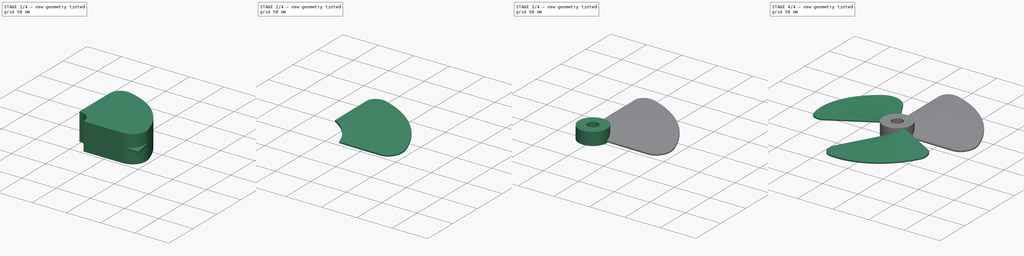
[diagram: build sequence overview — one tinted view per stage of 4, left to right]
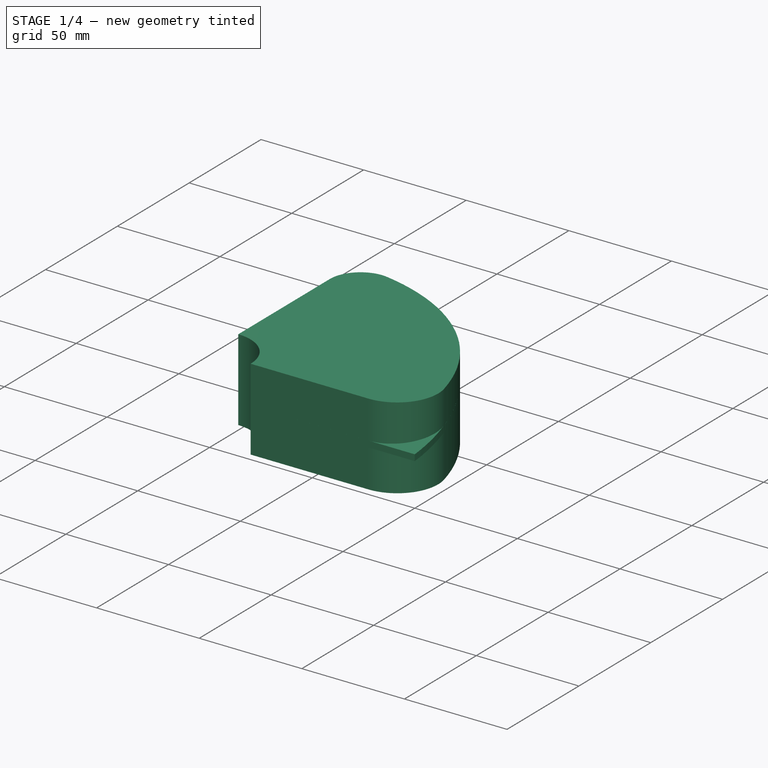
[diagram: stage 1 of 4 — iso view after this stage's code; geometry added in this stage tinted green]
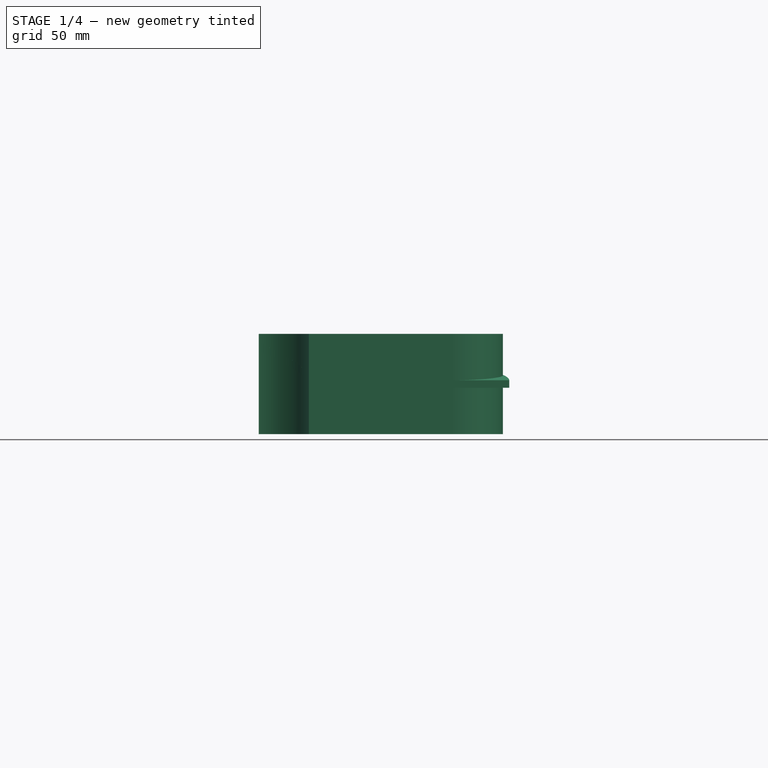
[diagram: stage 1 of 4 — front view after this stage's code; geometry added in this stage tinted green]
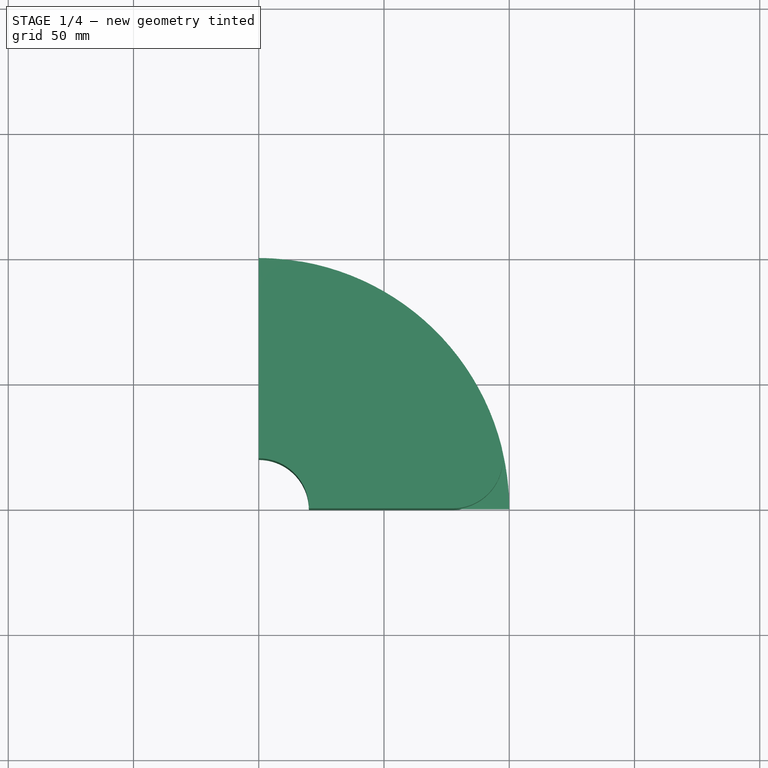
[diagram: stage 1 of 4 — top view after this stage's code; geometry added in this stage tinted green]
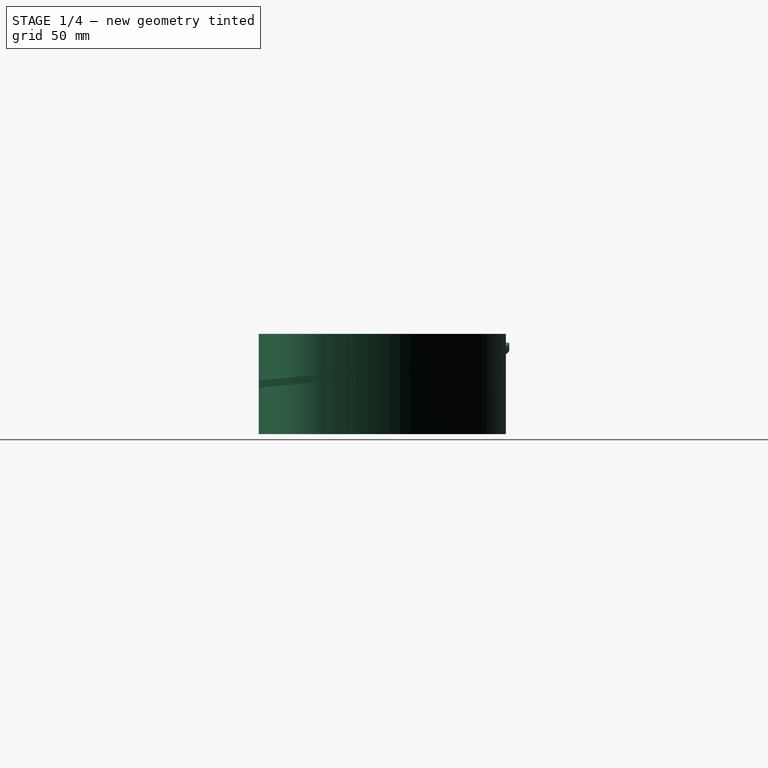
[diagram: stage 1 of 4 — right view after this stage's code; geometry added in this stage tinted green]
FCSTD DOCUMENT  (FreeCAD 0.21RUnknown)
Label: part44b-modellingFanPartDesignWB
License: All rights reserved
LicenseURL: http://en.wikipedia.org/wiki/All_rights_reserved
objects: PartDesign::Body×6, Sketcher::SketchObject×3, PartDesign::FeatureBase×3, PartDesign::Boolean×2, PartDesign::AdditiveHelix×1, PartDesign::Pad×1, PartDesign::AdditiveCylinder×1, PartDesign::Pocket×1, PartDesign::Fillet×1
note: 24 computed .brp shape members not serialized (recipe doc carries the construction recipe); baked Part::Feature solids carry a one-line shape summary decoded from their .brp

FEATURE [Sketcher::SketchObject] Sketch
  FullyConstrained = true
  MapMode = 5
  Support = -> [XY_Plane]
  sketch-geometry (6):
    g0: ArcOfCircle CenterX=0 CenterY=0 CenterZ=0 NormalX=0 NormalY=0 NormalZ=1 AngleXU=0 Radius=20 StartAngle=0 EndAngle=1.5708
    g1: ArcOfCircle CenterX=0 CenterY=0 CenterZ=0 NormalX=0 NormalY=0 NormalZ=1 AngleXU=0 Radius=100 StartAngle=0.25268 EndAngle=1.3934
    g2: LineSegment StartX=20 StartY=0 StartZ=0 EndX=77.4597 EndY=0 EndZ=0
    g3: LineSegment StartX=1.2e-15 StartY=20 StartZ=0 EndX=1.2e-15 EndY=83.666 EndZ=0
    g4: ArcOfCircle CenterX=15 CenterY=83.666 CenterZ=0 NormalX=0 NormalY=0 NormalZ=1 AngleXU=0 Radius=15 StartAngle=1.3934 EndAngle=3.14159
    g5: ArcOfCircle CenterX=77.4597 CenterY=20 CenterZ=0 NormalX=0 NormalY=0 NormalZ=1 AngleXU=0 Radius=20 StartAngle=4.71239 EndAngle=6.53587
  constraints (16):
    c: Coincident(g0,g-1)
    c: Radius(g0) = 20
    c: Coincident(g1,g0)
    c: Radius(g1) = 100
    c: Horizontal(g2)
    c: Vertical(g3)
    c: Coincident(g3,g0)
    c: Coincident(g2,g0)
    c: PointOnObject(g0,g-1)
    c: PointOnObject(g0,g-2)
    c: Tangent(g3,g4) = 1.5708
    c: Tangent(g1,g4) = -1.5708
    c: Tangent(g2,g5) = -1.5708
    c: Tangent(g1,g5) = -1.5708
    c: Radius(g5) = 20
    c: Radius(g4) = 15
FEATURE [Sketcher::SketchObject] Sketch001  label="Profile"
  FullyConstrained = true
  MapMode = 5
  Placement = pos=(0,0,0) rot=(1,0,0;1.5708rad)
  Support = -> [XZ_Plane001]
  sketch-geometry (4):
    g0: LineSegment StartX=20 StartY=1.5 StartZ=0 EndX=100 EndY=1.5 EndZ=0
    g1: LineSegment StartX=100 StartY=1.5 StartZ=0 EndX=100 EndY=-1.5 EndZ=0
    g2: LineSegment StartX=100 StartY=-1.5 StartZ=0 EndX=20 EndY=-1.5 EndZ=0
    g3: LineSegment StartX=20 StartY=-1.5 StartZ=0 EndX=20 EndY=1.5 EndZ=0
  constraints (11):
    c: Coincident(g0,g1)
    c: Coincident(g1,g2)
    c: Coincident(g2,g3)
    c: Coincident(g3,g0)
    c: Horizontal(g0)
    c: Horizontal(g2)
    c: Vertical(g1)
    c: DistanceX(g0,g0) = 80
    c: DistanceY(g3,g3) = 3
    c: DistanceX(g-1,g0) = 20
    c: Symmetric(g0,g2,g-1)
FEATURE [PartDesign::AdditiveHelix] AdditiveHelix
  Angle = 0
  Axis = (0,2e-16,1)
  Base = (0,0,0)
  Growth = 0
  HasBeenEdited = true
  Height = 15
  LeftHanded = false
  Mode = 2
  Outside = false
  Pitch = 60
  Placement = pos=(0,0,0) rot=(1,0,0;1.5708rad)
  Profile = -> Sketch001
  ReferenceAxis = -> Sketch001 [V_Axis]
  Turns = 0.25
FEATURE [PartDesign::Body] Body001  label="SweepBody"
  Group = -> [Sketch001,AdditiveHelix]
  Origin = -> Origin001
  Tip = -> AdditiveHelix
FEATURE [PartDesign::Pad] Pad
  Direction = (0,0,1)
  Length = 40
  Length2 = 10
  Midplane = true
  Profile = -> Sketch
  ReferenceAxis = -> Sketch [N_Axis]
  Type = 0
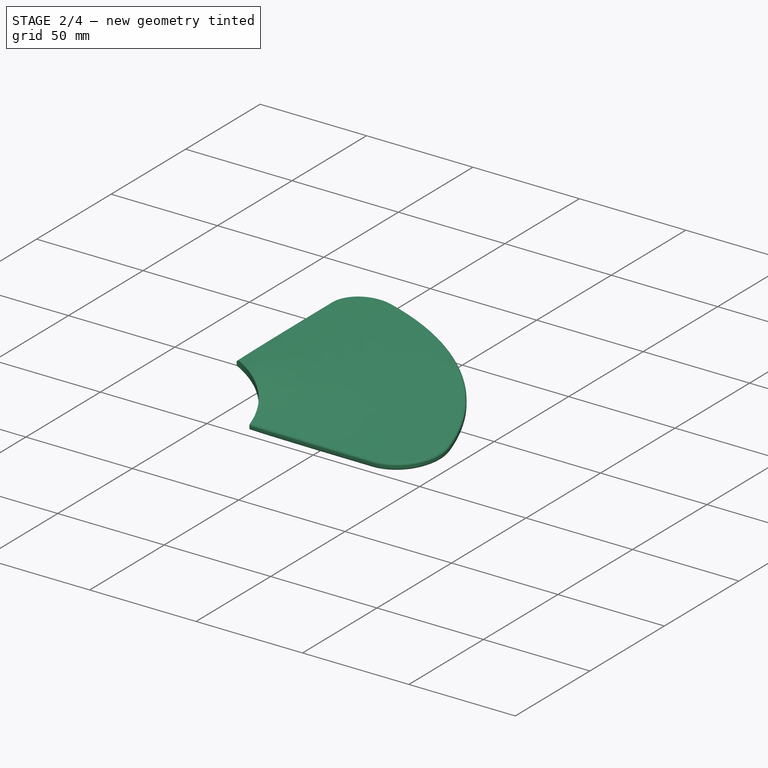
[diagram: stage 2 of 4 — iso view after this stage's code; geometry added in this stage tinted green]
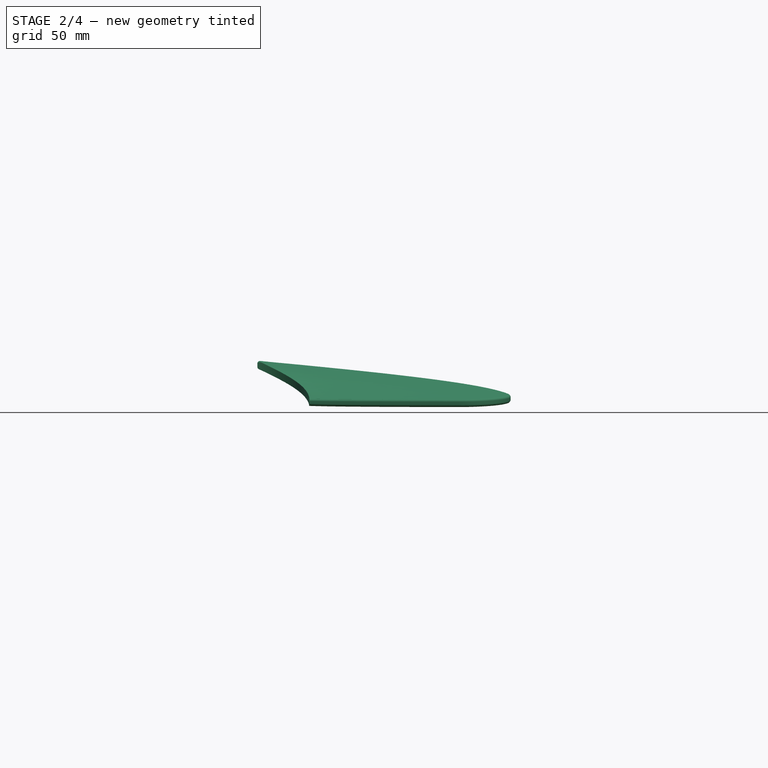
[diagram: stage 2 of 4 — front view after this stage's code; geometry added in this stage tinted green]
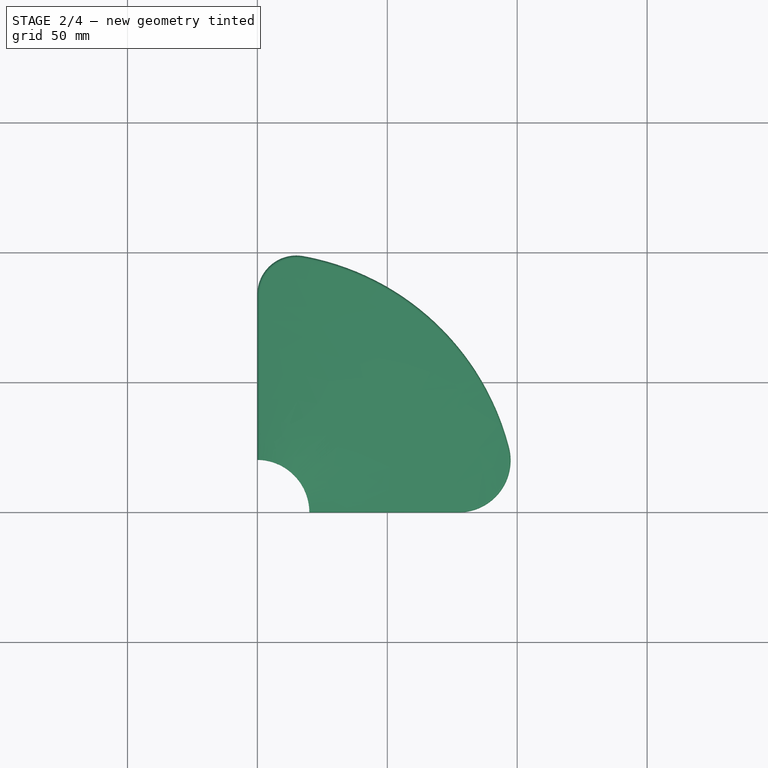
[diagram: stage 2 of 4 — top view after this stage's code; geometry added in this stage tinted green]
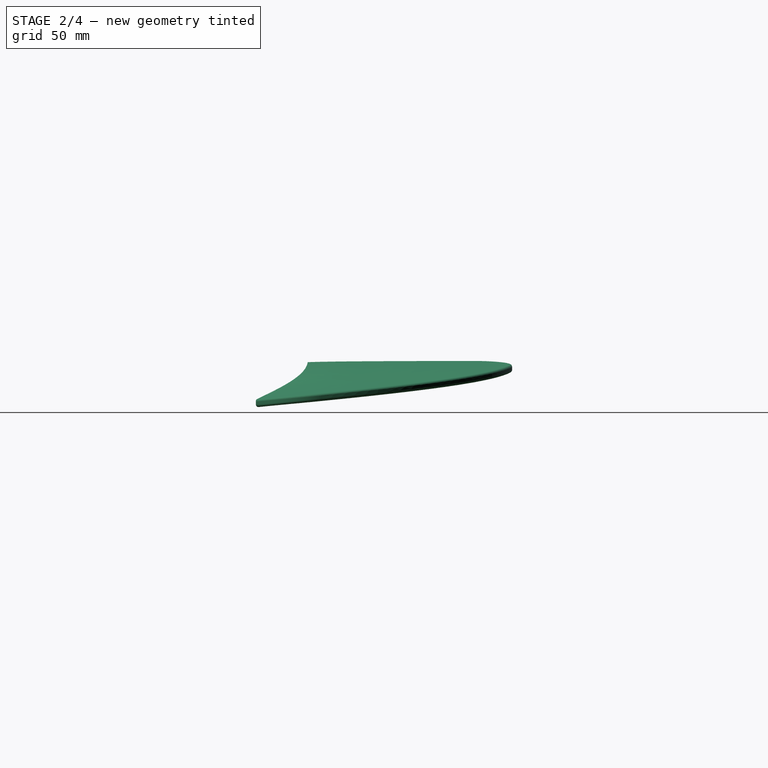
[diagram: stage 2 of 4 — right view after this stage's code; geometry added in this stage tinted green]
FEATURE [PartDesign::Boolean] Boolean
  BaseFeature = -> Pad
  Group = -> [Body001]
  Type = 2
FEATURE [PartDesign::Fillet] Fillet
  Base = -> Boolean [Edge3,Edge1]
  BaseFeature = -> Boolean
  Radius = 1
  SupportTransform = false
  UseAllEdges = false
FEATURE [PartDesign::Body] Body003  label="FanBlade3"
  Group = -> [Clone001]
  Origin = -> Origin003
  Placement = pos=(0,0,0) rot=(0,0,1;4.18879rad)
  Tip = -> Clone001
  expr: .Placement.Rotation.Angle = 240
FEATURE [PartDesign::FeatureBase] Clone002
  BaseFeature = -> Body
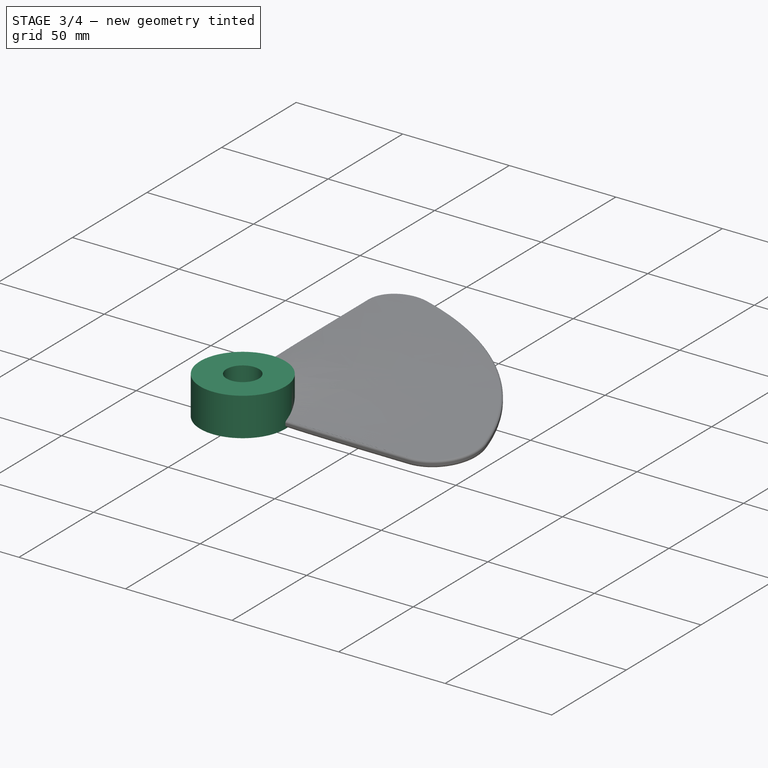
[diagram: stage 3 of 4 — iso view after this stage's code; geometry added in this stage tinted green]
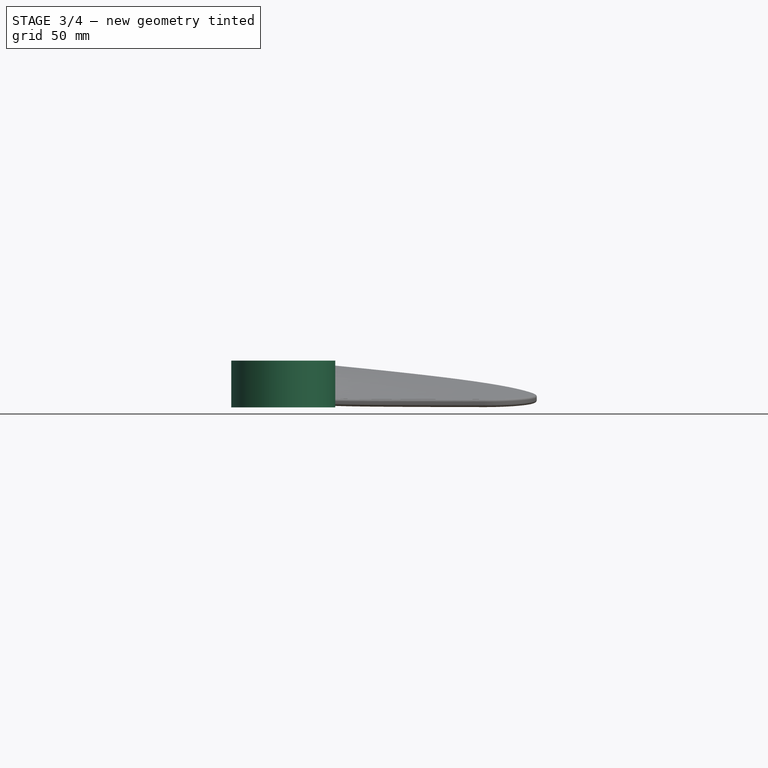
[diagram: stage 3 of 4 — front view after this stage's code; geometry added in this stage tinted green]
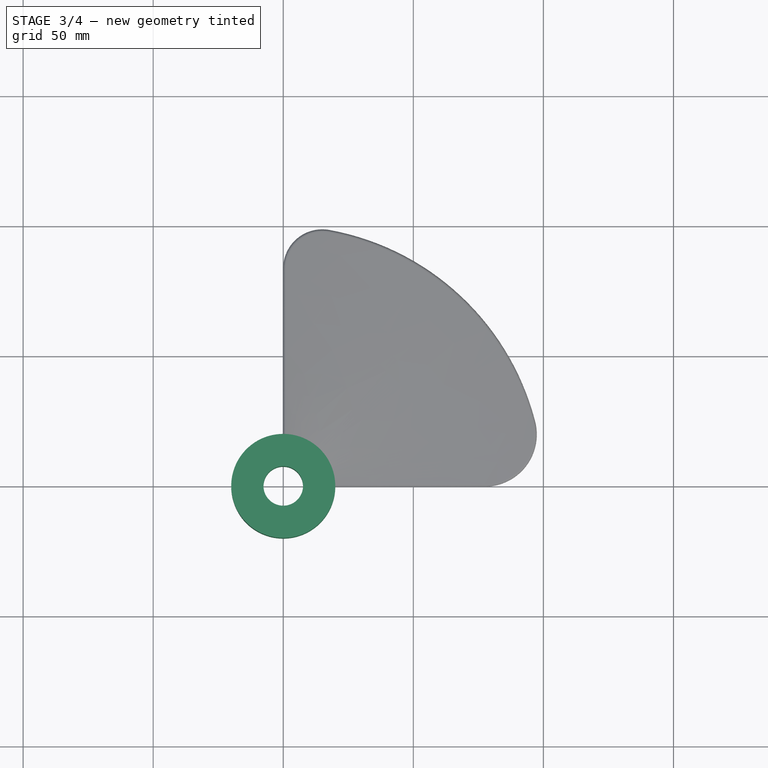
[diagram: stage 3 of 4 — top view after this stage's code; geometry added in this stage tinted green]
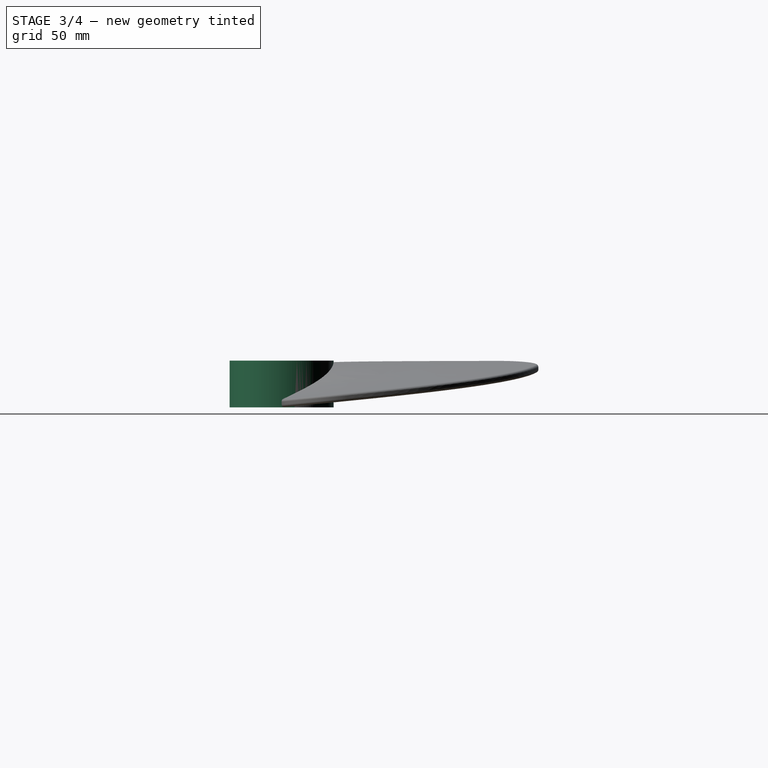
[diagram: stage 3 of 4 — right view after this stage's code; geometry added in this stage tinted green]
FEATURE [PartDesign::AdditiveCylinder] Cylinder
  Angle = 360
  AttacherType = Attacher::AttachEngine3D
  AttachmentOffset = pos=(0,0,-1.5) rot=(0,0,1;0rad)
  FirstAngle = 0
  Height = 18
  MapMode = 5
  Placement = pos=(0,0,-1.5) rot=(0,0,1;0rad)
  Radius = 20
  SecondAngle = 0
  Support = -> [XY_Plane004]
FEATURE [Sketcher::SketchObject] Sketch002
  FullyConstrained = false
  MapMode = 5
  Placement = pos=(0,0,16.5) rot=(0,0,1;0rad)
  Support = -> [Cylinder]
  sketch-geometry (1):
    g0: Circle CenterX=0 CenterY=0 CenterZ=0 NormalX=0 NormalY=0 NormalZ=1 AngleXU=0 Radius=7.60023
  constraints (1):
    c: Coincident(g0,g-1)
FEATURE [PartDesign::Pocket] Pocket
  BaseFeature = -> Cylinder
  Direction = (0,0,-1)
  Length = 5
  Length2 = 5
  Placement = pos=(0,0,-1.5) rot=(0,0,1;0rad)
  Profile = -> Sketch002
  ReferenceAxis = -> Sketch002 [N_Axis]
  Type = 1
FEATURE [PartDesign::Body] Body002  label="FanBlade2"
  Group = -> [Clone]
  Origin = -> Origin002
  Placement = pos=(0,0,0) rot=(0,0,1;2.0944rad)
  Tip = -> Clone
FEATURE [PartDesign::FeatureBase] Clone001
  BaseFeature = -> Body
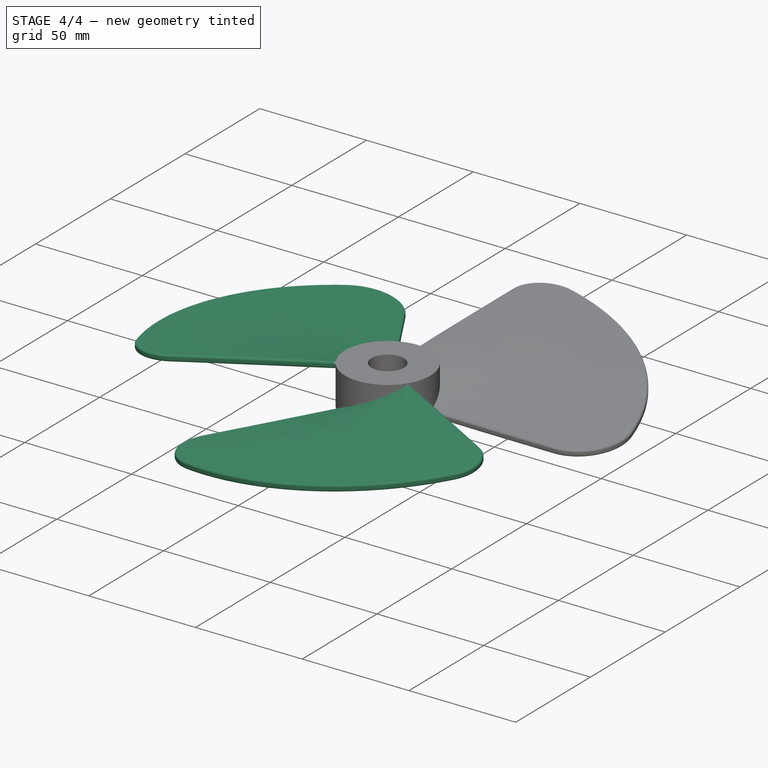
[diagram: stage 4 of 4 — iso view after this stage's code; geometry added in this stage tinted green]
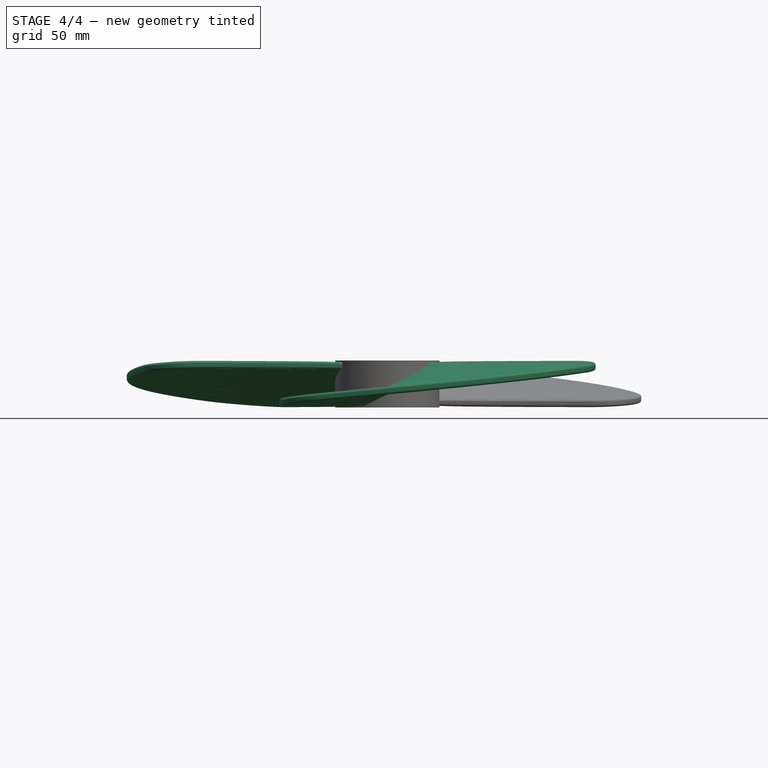
[diagram: stage 4 of 4 — front view after this stage's code; geometry added in this stage tinted green]
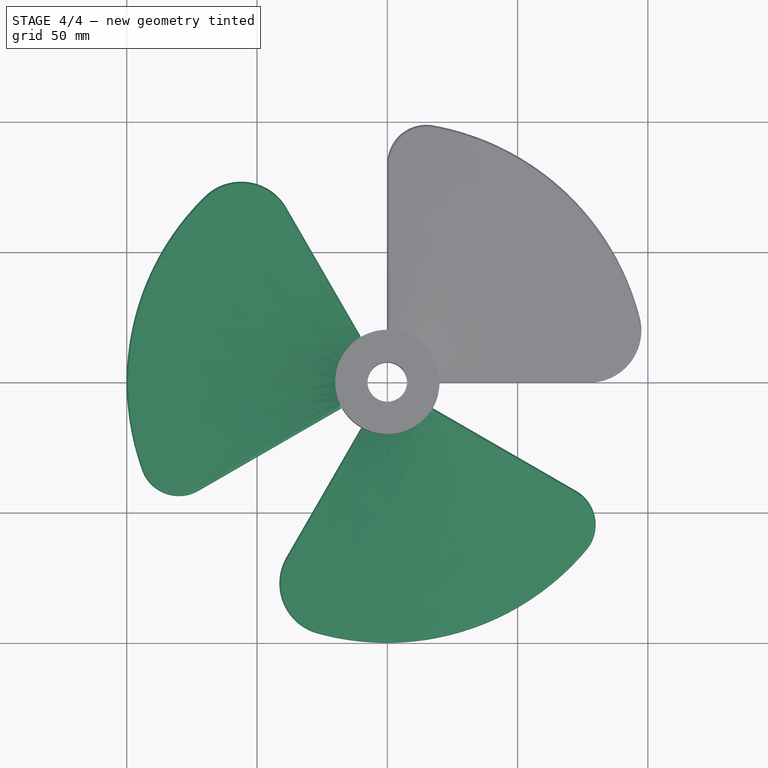
[diagram: stage 4 of 4 — top view after this stage's code; geometry added in this stage tinted green]
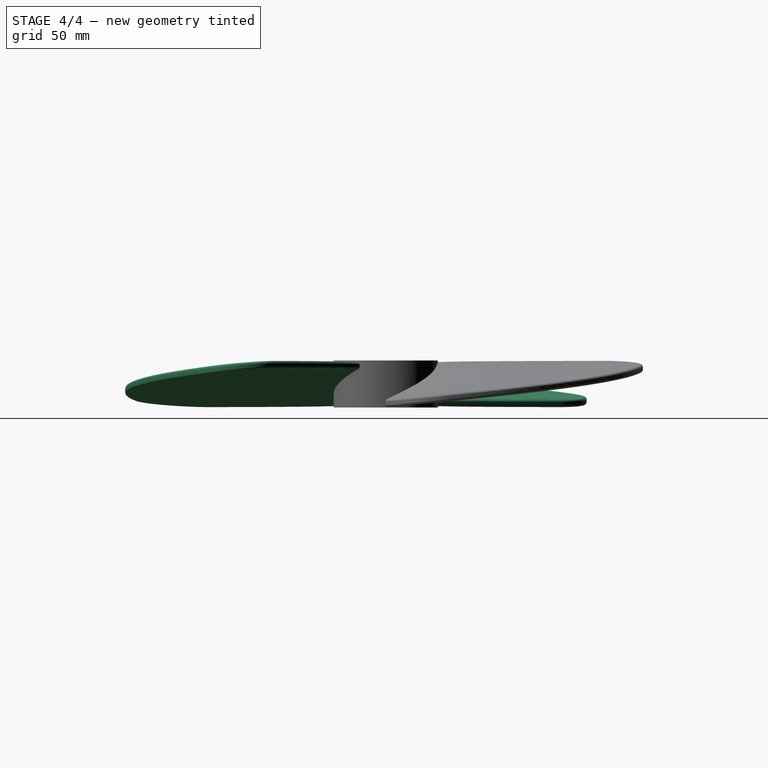
[diagram: stage 4 of 4 — right view after this stage's code; geometry added in this stage tinted green]
FEATURE [PartDesign::Body] Body  label="FanBlade - original"
  Group = -> [Sketch,Pad,Boolean,Fillet]
  Origin = -> Origin
  Tip = -> Fillet
FEATURE [PartDesign::FeatureBase] Clone
  BaseFeature = -> Body
FEATURE [PartDesign::Body] Body005  label="FanBlade1"
  Group = -> [Clone002]
  Origin = -> Origin005
  Tip = -> Clone002
FEATURE [PartDesign::Boolean] Boolean001  label="Boolean001 - of clones"
  BaseFeature = -> Pocket
  Group = -> [Body005,Body003,Body002]
  Type = 0
FEATURE [PartDesign::Body] Body004  label="ConnectionPoint"
  Group = -> [Cylinder,Sketch002,Pocket,Boolean001]
  Origin = -> Origin004
  Tip = -> Boolean001
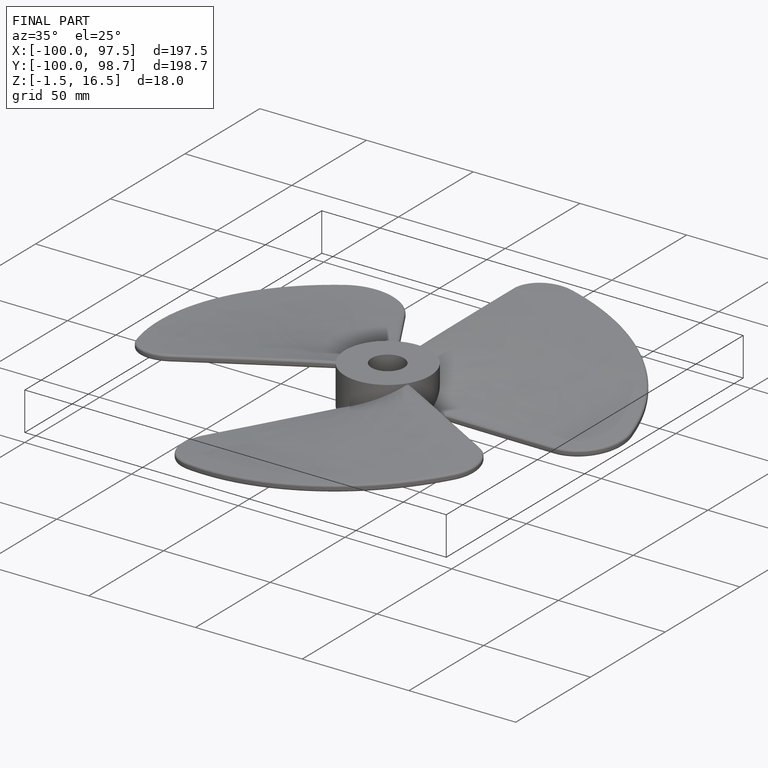
[diagram: finished part — iso view with bounding-box wireframe]
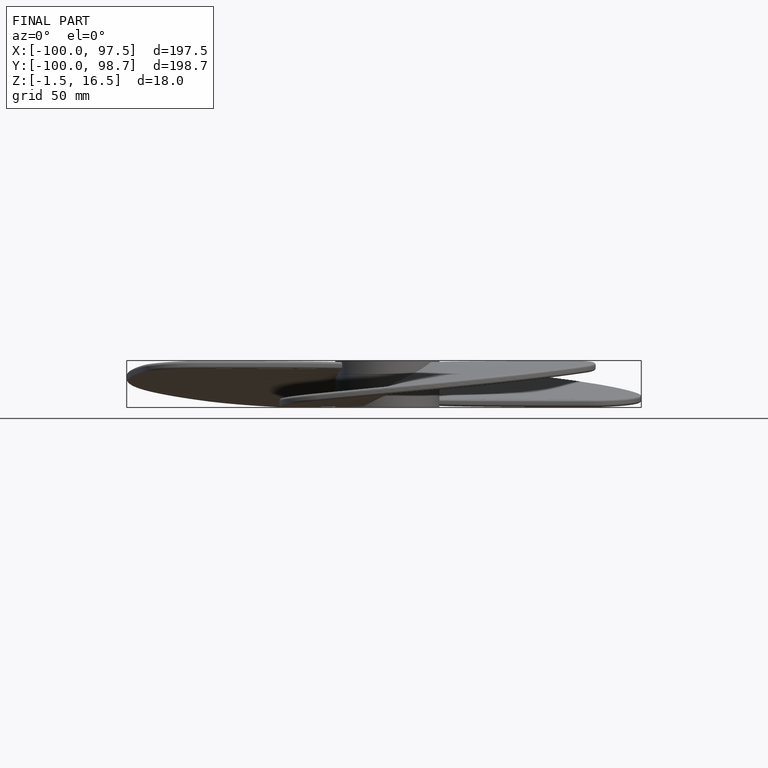
[diagram: finished part — front view with bounding-box wireframe]
